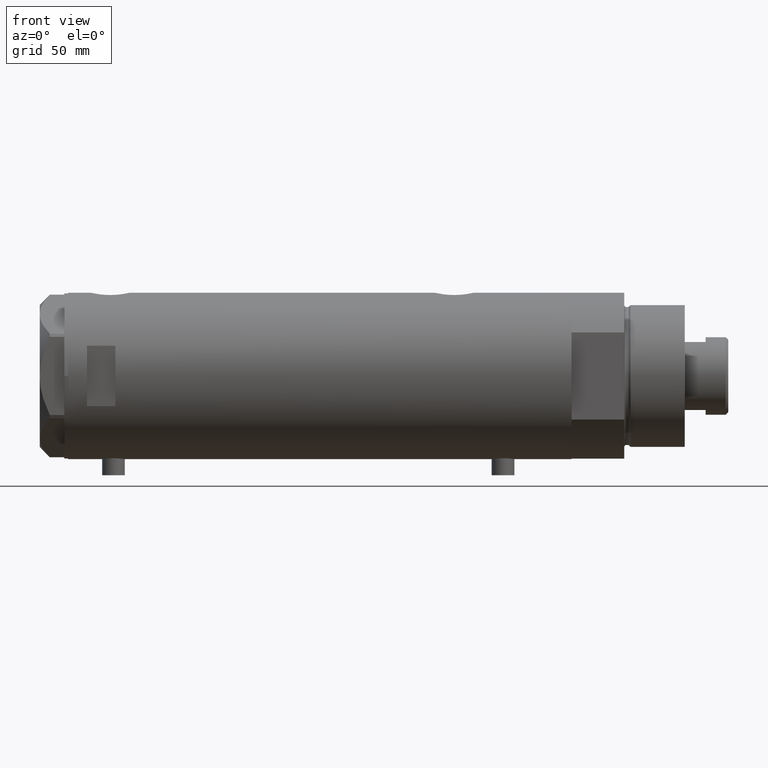
[diagram: clean part render]
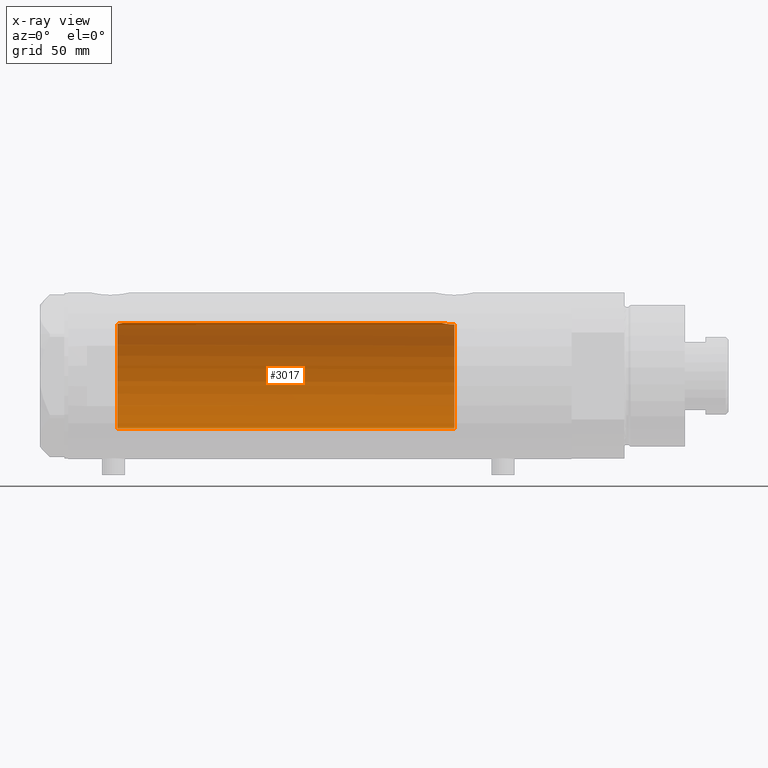
[diagram: x-ray — body ghosted, one internal face saturated and labeled with its STEP entity id]
A machine part, front view, then the same camera in x-ray: the body is ghosted and one INTERNAL B-rep face — a face not visible from any outside direction — is saturated and labeled: STEP entity #3017.
In plain terms, the highlighted cylindrical surface (partial cylindrical patch) has radius 28 mm, axis along (1, 0, -0).
Its self-contained STEP definition (entity closure, byte-faithful):
#29 = ORIENTED_EDGE ( 'NONE', *, *, #1818, .F. ) ;
#74 = VERTEX_POINT ( 'NONE', #684 ) ;
#82 = CARTESIAN_POINT ( 'NONE',  ( 27.87926027245440963, 2.609415915507864892, 104.8536592036424224 ) ) ;
#84 = CARTESIAN_POINT ( 'NONE',  ( 27.86588799758910895, 2.744542339393450714, -65.11578757899562220 ) ) ;
#228 = EDGE_CURVE ( 'NONE', #250, #4383, #1725, .T. ) ;
#250 = VERTEX_POINT ( 'NONE', #3946 ) ;
#254 = DIRECTION ( 'NONE',  ( -0.000000000000000000, -0.000000000000000000, -1.000000000000000000 ) ) ;
#327 = CARTESIAN_POINT ( 'NONE',  ( -28.00000000000000000, 0.000000000000000000, 133.1999999999999886 ) ) ;
#414 = CARTESIAN_POINT ( 'NONE',  ( 27.92057377942992602, 2.145335874642060769, -64.86449057456583489 ) ) ;
#436 = CARTESIAN_POINT ( 'NONE',  ( 27.98989376185445366, 0.8673308354119254604, -64.56259295538816900 ) ) ;
#505 = CARTESIAN_POINT ( 'NONE',  ( 27.70785054350544030, 4.050475470458774652, -65.89631279652930118 ) ) ;
#564 = CARTESIAN_POINT ( 'NONE',  ( 27.71586615897685846, 3.998795151939229076, 105.6476739562574352 ) ) ;
#574 = FACE_OUTER_BOUND ( 'NONE', #2827, .T. ) ;
#684 = CARTESIAN_POINT ( 'NONE',  ( 28.00000000000000000, 0.000000000000000000, 104.3199999999999790 ) ) ;
#756 = DIRECTION ( 'NONE',  ( -1.000000000000000000, 0.000000000000000000, 0.000000000000000000 ) ) ;
#809 = CARTESIAN_POINT ( 'NONE',  ( 27.36295003163001738, 5.941130795499230288, -68.23794896005178146 ) ) ;
#833 = AXIS2_PLACEMENT_3D ( 'NONE', #857, #2253, #756 ) ;
#857 = CARTESIAN_POINT ( 'NONE',  ( 0.000000000000000000, 0.000000000000000000, -71.19999999999998863 ) ) ;
#1061 = CARTESIAN_POINT ( 'NONE',  ( 27.46622653369042411, 5.441176343402229776, 107.1999999999999886 ) ) ;
#1074 = CARTESIAN_POINT ( 'NONE',  ( -28.00000000000000000, 0.000000000000000000, 107.1999999999999886 ) ) ;
#1082 = CARTESIAN_POINT ( 'NONE',  ( 27.93969014165221765, 1.855286977351526811, 104.5812411240566178 ) ) ;
#1132 = CARTESIAN_POINT ( 'NONE',  ( 27.77951318121829871, 3.511620812961475657, -65.53115835401436584 ) ) ;
#1151 = CARTESIAN_POINT ( 'NONE',  ( 27.40633791352275850, 5.740289853568793177, -67.85469713442367379 ) ) ;
#1174 = CARTESIAN_POINT ( 'NONE',  ( 27.57921322802619457, 4.838471943606464265, -66.63541026849050297 ) ) ;
#1256 = CARTESIAN_POINT ( 'NONE',  ( 27.52730847012277948, 5.126288527110444804, 106.7662339946190997 ) ) ;
#1278 = CARTESIAN_POINT ( 'NONE',  ( 0.000000000000000000, 0.000000000000000000, 107.1999999999999886 ) ) ;
#1292 = B_SPLINE_CURVE_WITH_KNOTS ( 'NONE', 3,
 ( #2460, #3871, #1256, #4074, #3725, #564, #1963, #3232, #82, #1430, #1082, #2588, #1477, #3997 ),
 .UNSPECIFIED., .F., .F.,
 ( 4, 2, 2, 2, 2, 2, 4 ),
 ( 0.03488855882532448244, 0.03568791961119569672, 0.03648728039706691101, 0.03808600196880930489, 0.03888536275468049142, 0.03968472354055168488, 0.04128344511229407182 ),
 .UNSPECIFIED. ) ;
#1430 = CARTESIAN_POINT ( 'NONE',  ( 27.92131942247208798, 2.112374604004428669, 104.6625997420270409 ) ) ;
#1477 = CARTESIAN_POINT ( 'NONE',  ( 28.00000000000000711, 0.5407212781083802211, 104.3199999999999932 ) ) ;
#1525 = CARTESIAN_POINT ( 'NONE',  ( 27.21605408577813279, 6.579240077698946365, -71.19999999999998863 ) ) ;
#1608 = CYLINDRICAL_SURFACE ( 'NONE', #3475, 28.00000000000000000 ) ;
#1633 = CARTESIAN_POINT ( 'NONE',  ( 0.000000000000000000, 0.000000000000000000, 133.1999999999999886 ) ) ;
#1678 = LINE ( 'NONE', #3095, #2720 ) ;
#1697 = ORIENTED_EDGE ( 'NONE', *, *, #4508, .T. ) ;
#1710 = CARTESIAN_POINT ( 'NONE',  ( 27.21605408577813279, 6.579240077698946365, -71.19999999999998863 ) ) ;
#1725 = B_SPLINE_CURVE_WITH_KNOTS ( 'NONE', 3,
 ( #2261, #2905, #436, #3626, #414, #84, #3666, #3924, #1132, #505, #2170, #1174, #4272, #1836, #2857, #1151, #809, #2926, #3998, #1909, #3261, #3333, #2239, #1525 ),
 .UNSPECIFIED., .F., .F.,
 ( 4, 2, 2, 2, 2, 2, 2, 2, 2, 2, 2, 4 ),
 ( 0.02064447638625019343, 0.02194711032043802912, 0.02324974425462586480, 0.02390106122171979305, 0.02455237818881372130, 0.02585501212300157781, 0.02650632909009550259, 0.02715764605718943084, 0.02846027999137728387, 0.02976291392556514037, 0.03041423089265906515, 0.03106554785975299340 ),
 .UNSPECIFIED. ) ;
#1818 = EDGE_CURVE ( 'NONE', #74, #250, #1678, .T. ) ;
#1836 = CARTESIAN_POINT ( 'NONE',  ( 27.50226589723265747, 5.257822516958270853, -67.13779315141977122 ) ) ;
#1909 = CARTESIAN_POINT ( 'NONE',  ( 27.23306259439847565, 6.508606919525675494, -70.10931986330976429 ) ) ;
#1963 = CARTESIAN_POINT ( 'NONE',  ( 27.77752716845532532, 3.554080867558366386, 105.3370280902186096 ) ) ;
#1982 = DIRECTION ( 'NONE',  ( 0.000000000000000000, 0.000000000000000000, 1.000000000000000000 ) ) ;
#1983 = AXIS2_PLACEMENT_3D ( 'NONE', #1278, #1982, #4198 ) ;
#2016 = ORIENTED_EDGE ( 'NONE', *, *, #4170, .T. ) ;
#2116 = DIRECTION ( 'NONE',  ( -0.000000000000000000, -0.000000000000000000, -1.000000000000000000 ) ) ;
#2170 = CARTESIAN_POINT ( 'NONE',  ( 27.65669575048418238, 4.382057994727793115, -66.17233761202032838 ) ) ;
#2211 = CIRCLE ( 'NONE', #1983, 28.00000000000000000 ) ;
#2239 = CARTESIAN_POINT ( 'NONE',  ( 27.21525044627862044, 6.582564457995942142, -70.98128103916467069 ) ) ;
#2253 = DIRECTION ( 'NONE',  ( 0.000000000000000000, 0.000000000000000000, -1.000000000000000000 ) ) ;
#2261 = CARTESIAN_POINT ( 'NONE',  ( 28.00000000000000000, 8.058211040172173087E-16, -64.51999999999999602 ) ) ;
#2268 = VERTEX_POINT ( 'NONE', #1074 ) ;
#2279 = ORIENTED_EDGE ( 'NONE', *, *, #2725, .F. ) ;
#2460 = CARTESIAN_POINT ( 'NONE',  ( 27.46622653369042411, 5.441176343402229776, 107.1999999999999886 ) ) ;
#2588 = CARTESIAN_POINT ( 'NONE',  ( 27.98435453724556154, 1.072101232728052578, 104.3856609737168384 ) ) ;
#2612 = VERTEX_POINT ( 'NONE', #1061 ) ;
#2621 = EDGE_CURVE ( 'NONE', #2612, #2268, #2211, .T. ) ;
#2720 = VECTOR ( 'NONE', #254, 1000.000000000000000 ) ;
#2725 = EDGE_CURVE ( 'NONE', #2612, #74, #1292, .T. ) ;
#2809 = VECTOR ( 'NONE', #2116, 1000.000000000000000 ) ;
#2827 = EDGE_LOOP ( 'NONE', ( #29, #2279, #2913, #2016, #1697, #3889 ) ) ;
#2857 = CARTESIAN_POINT ( 'NONE',  ( 27.47751794615729537, 5.385218554237044764, -67.31285718566400078 ) ) ;
#2887 = LINE ( 'NONE', #327, #2809 ) ;
#2905 = CARTESIAN_POINT ( 'NONE',  ( 28.00000000000000000, 0.4344375524774774511, -64.51999999999999602 ) ) ;
#2913 = ORIENTED_EDGE ( 'NONE', *, *, #2621, .T. ) ;
#2926 = CARTESIAN_POINT ( 'NONE',  ( 27.28989504668420807, 6.268149480003695651, -69.05093353430702052 ) ) ;
#2972 = CARTESIAN_POINT ( 'NONE',  ( -28.00000000000000000, 0.000000000000000000, -71.19999999999998863 ) ) ;
#3017 = ADVANCED_FACE ( 'NONE', ( #574 ), #1608, .F. ) ;
#3095 = CARTESIAN_POINT ( 'NONE',  ( 28.00000000000000000, 3.429011037612588487E-15, 133.1999999999999886 ) ) ;
#3232 = CARTESIAN_POINT ( 'NONE',  ( 27.85549123290575935, 2.850830541327410206, 104.9637046868290895 ) ) ;
#3261 = CARTESIAN_POINT ( 'NONE',  ( 27.22604017942136423, 6.537820648187911310, -70.32472952793339971 ) ) ;
#3333 = CARTESIAN_POINT ( 'NONE',  ( 27.21712162367727572, 6.574850051620749980, -70.76016190408786599 ) ) ;
#3475 = AXIS2_PLACEMENT_3D ( 'NONE', #1633, #4039, #4460 ) ;
#3626 = CARTESIAN_POINT ( 'NONE',  ( 27.94984428957576839, 1.729919005741099136, -64.73624844305088288 ) ) ;
#3666 = CARTESIAN_POINT ( 'NONE',  ( 27.84585502960273828, 2.940342086136629618, -65.20946914370762215 ) ) ;
#3703 = CIRCLE ( 'NONE', #833, 28.00000000000000000 ) ;
#3725 = CARTESIAN_POINT ( 'NONE',  ( 27.62184089756352989, 4.590621453796800644, 106.1784729639471720 ) ) ;
#3735 = VERTEX_POINT ( 'NONE', #2972 ) ;
#3871 = CARTESIAN_POINT ( 'NONE',  ( 27.49602064413222635, 5.290780227724654949, 106.9788292468204105 ) ) ;
#3889 = ORIENTED_EDGE ( 'NONE', *, *, #228, .F. ) ;
#3924 = CARTESIAN_POINT ( 'NONE',  ( 27.80267334785860101, 3.323944738624908357, -65.41709962017576174 ) ) ;
#3946 = CARTESIAN_POINT ( 'NONE',  ( 28.00000000000000000, 8.058211040172173087E-16, -64.51999999999999602 ) ) ;
#3997 = CARTESIAN_POINT ( 'NONE',  ( 28.00000000000000000, 0.000000000000000000, 104.3199999999999790 ) ) ;
#3998 = CARTESIAN_POINT ( 'NONE',  ( 27.26132124301008730, 6.389601967157237716, -69.46983701249827448 ) ) ;
#4039 = DIRECTION ( 'NONE',  ( -0.000000000000000000, -0.000000000000000000, -1.000000000000000000 ) ) ;
#4074 = CARTESIAN_POINT ( 'NONE',  ( 27.59012538417910676, 4.776664836238047940, 106.3667529856984402 ) ) ;
#4170 = EDGE_CURVE ( 'NONE', #2268, #3735, #2887, .T. ) ;
#4198 = DIRECTION ( 'NONE',  ( 1.000000000000000000, 0.000000000000000000, 0.000000000000000000 ) ) ;
#4272 = CARTESIAN_POINT ( 'NONE',  ( 27.55311958554908358, 4.984468698502468875, -66.79897075987403809 ) ) ;
#4383 = VERTEX_POINT ( 'NONE', #1710 ) ;
#4460 = DIRECTION ( 'NONE',  ( -1.000000000000000000, 0.000000000000000000, 0.000000000000000000 ) ) ;
#4508 = EDGE_CURVE ( 'NONE', #3735, #4383, #3703, .T. ) ;